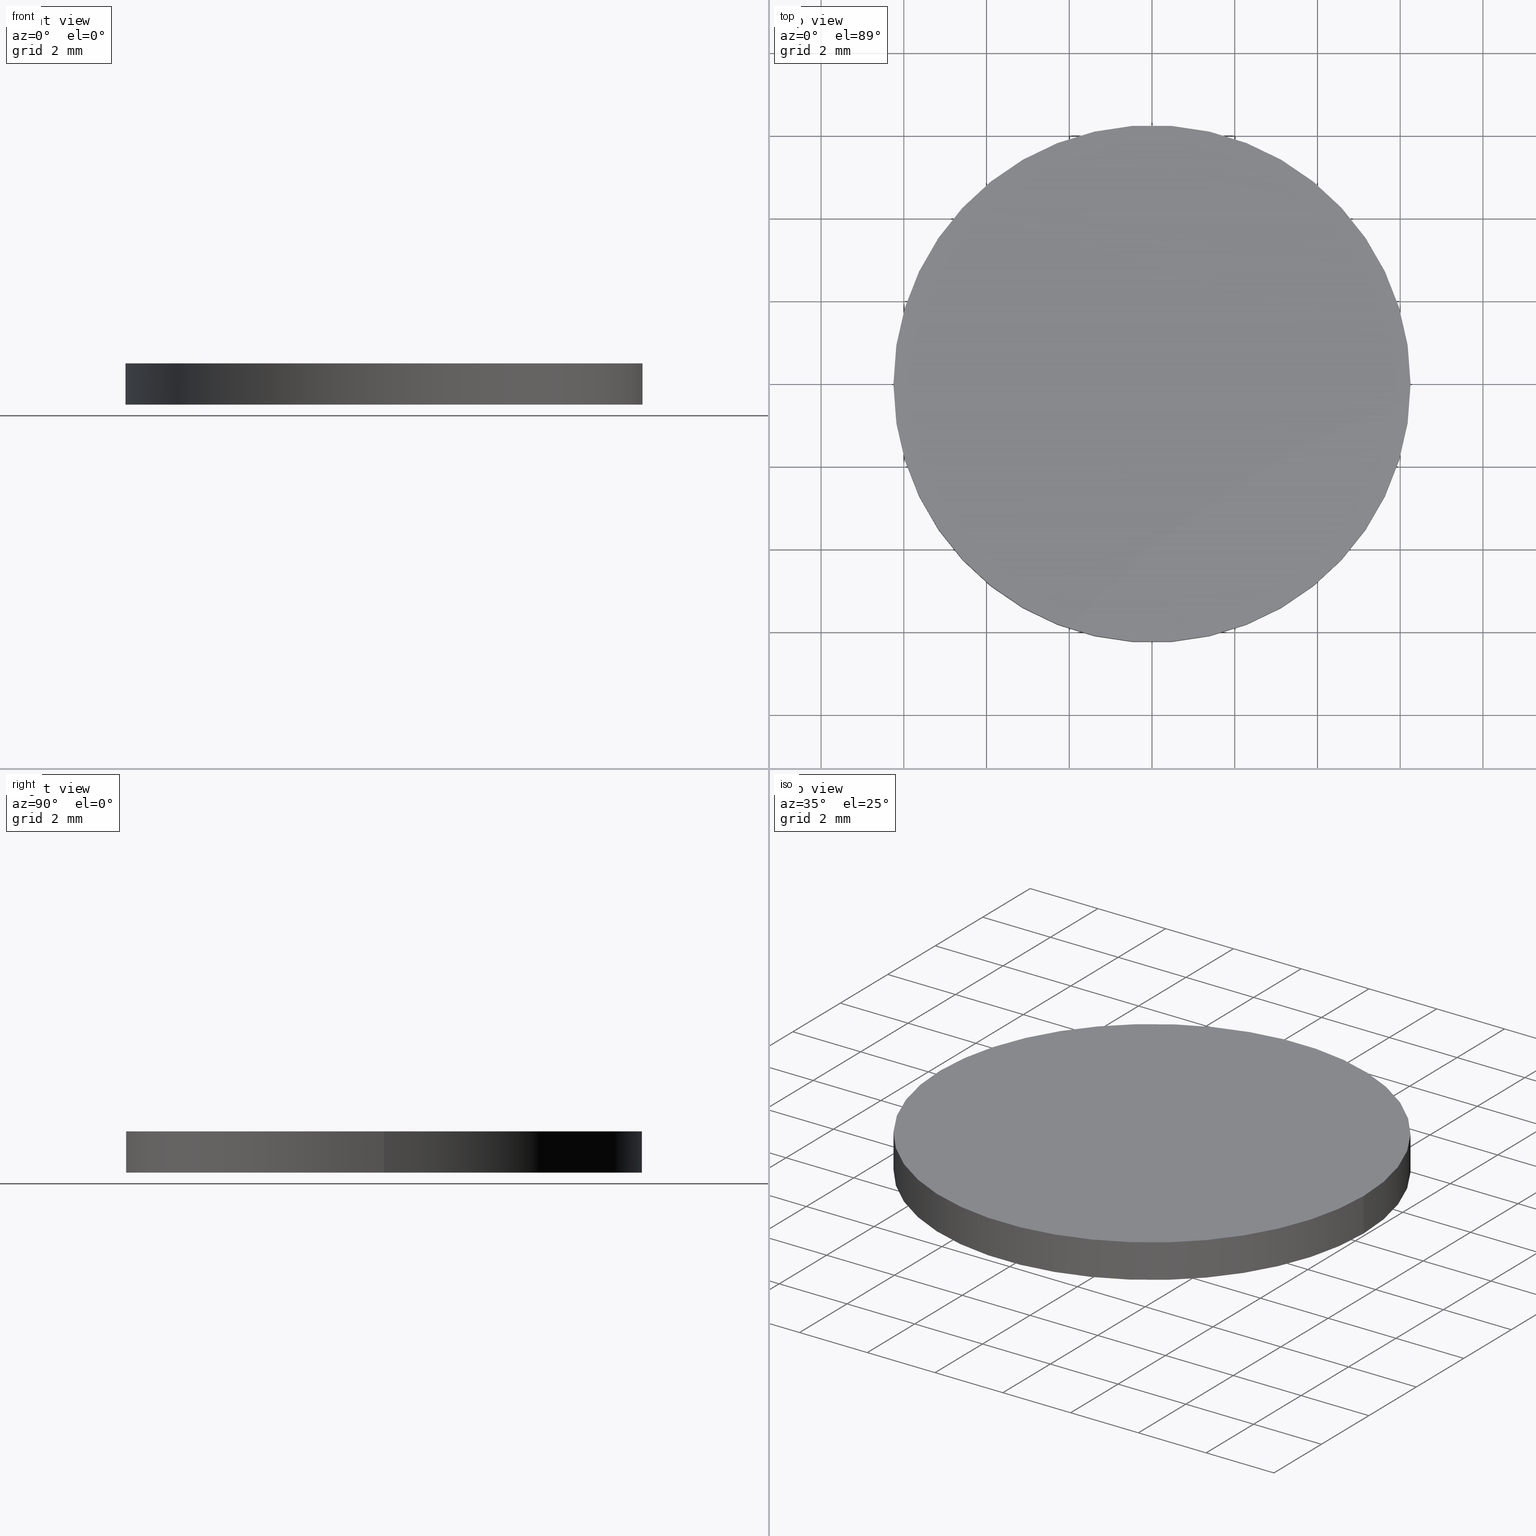
[diagram: canonical four-view strip — front | top / right | iso, engineering-drawing reading convention]
A machine part, canonical four-view strip (front | top / right | iso — engineering-drawing reading convention). The complete STEP part file that produces these views, byte-faithful:
ISO-10303-21;
HEADER;
FILE_DESCRIPTION (( 'STEP AP214' ),
    '1' );
FILE_NAME ('190115.STEP',
    '2019-07-17T02:16:48',
    ( 'user' ),
    ( '΢���й�' ),
    'SwSTEP 2.0',
    'SolidWorks 2016',
    '' );
FILE_SCHEMA (( 'AUTOMOTIVE_DESIGN' ));
ENDSEC;

DATA;
#1 =( LENGTH_UNIT ( ) NAMED_UNIT ( * ) SI_UNIT ( .MILLI., .METRE. ) );
#2 = STYLED_ITEM ( 'NONE', ( #11 ), #118 ) ;
#3 = VERTEX_POINT ( 'NONE', #18 ) ;
#4 = ORIENTED_EDGE ( 'NONE', *, *, #65, .F. ) ;
#5 = PRODUCT_DEFINITION_FORMATION_WITH_SPECIFIED_SOURCE ( '�κ�', '', #52, .NOT_KNOWN. ) ;
#6 =( NAMED_UNIT ( * ) SI_UNIT ( $, .STERADIAN. ) SOLID_ANGLE_UNIT ( ) );
#7 =( NAMED_UNIT ( * ) PLANE_ANGLE_UNIT ( ) SI_UNIT ( $, .RADIAN. ) );
#8 = ORIENTED_EDGE ( 'NONE', *, *, #65, .T. ) ;
#9 =( NAMED_UNIT ( * ) SI_UNIT ( $, .STERADIAN. ) SOLID_ANGLE_UNIT ( ) );
#10 = AXIS2_PLACEMENT_3D ( 'NONE', #111, #77, #122 ) ;
#11 = PRESENTATION_STYLE_ASSIGNMENT (( #91 ) ) ;
#12 = UNCERTAINTY_MEASURE_WITH_UNIT (LENGTH_MEASURE( 1.000000000000000100E-005 ), #112, 'distance_accuracy_value', 'NONE');
#13 = FILL_AREA_STYLE ('',( #47 ) ) ;
#14 = APPLICATION_PROTOCOL_DEFINITION ( 'draft international standard', 'automotive_design', 1998, #36 ) ;
#15 = DIRECTION ( 'NONE',  ( 0.0000000000000000000, 0.0000000000000000000, 1.000000000000000000 ) ) ;
#16 = PRODUCT_RELATED_PRODUCT_CATEGORY ( 'part', '', ( #52 ) ) ;
#17 = PRESENTATION_LAYER_ASSIGNMENT (  '', '', ( #2 ) ) ;
#18 = CARTESIAN_POINT ( 'NONE',  ( -6.250000000000000000, 0.0000000000000000000, 1.000000000000000000 ) ) ;
#19 = CARTESIAN_POINT ( 'NONE',  ( 0.0000000000000000000, 0.0000000000000000000, 1.000000000000000000 ) ) ;
#20 = DIRECTION ( 'NONE',  ( 1.000000000000000000, 0.0000000000000000000, 0.0000000000000000000 ) ) ;
#21 = CYLINDRICAL_SURFACE ( 'NONE', #75, 6.250000000000000000 ) ;
#22 = DIRECTION ( 'NONE',  ( 0.0000000000000000000, 0.0000000000000000000, 1.000000000000000000 ) ) ;
#23 = CARTESIAN_POINT ( 'NONE',  ( 0.0000000000000000000, 0.0000000000000000000, 1.000000000000000000 ) ) ;
#24 = ADVANCED_FACE ( 'NONE', ( #76 ), #21, .T. ) ;
#25 = CARTESIAN_POINT ( 'NONE',  ( 0.0000000000000000000, 0.0000000000000000000, 0.0000000000000000000 ) ) ;
#26 = MECHANICAL_DESIGN_GEOMETRIC_PRESENTATION_REPRESENTATION (  '', ( #2 ), #37 ) ;
#27 = ORIENTED_EDGE ( 'NONE', *, *, #64, .T. ) ;
#28 = EDGE_CURVE ( 'NONE', #98, #3, #107, .T. ) ;
#29 = DIRECTION ( 'NONE',  ( 0.0000000000000000000, 0.0000000000000000000, 1.000000000000000000 ) ) ;
#30 = DIRECTION ( 'NONE',  ( -0.0000000000000000000, -0.0000000000000000000, -1.000000000000000000 ) ) ;
#31 = PRODUCT_DEFINITION_CONTEXT ( 'detailed design', #36, 'design' ) ;
#32 = DIRECTION ( 'NONE',  ( -0.0000000000000000000, -0.0000000000000000000, -1.000000000000000000 ) ) ;
#33 = ADVANCED_BREP_SHAPE_REPRESENTATION ( '190115', ( #118, #132 ), #46 ) ;
#34 = EDGE_CURVE ( 'NONE', #85, #119, #53, .T. ) ;
#35 = EDGE_LOOP ( 'NONE', ( #126, #94, #66, #8 ) ) ;
#36 = APPLICATION_CONTEXT ( 'automotive_design' ) ;
#37 =( GEOMETRIC_REPRESENTATION_CONTEXT ( 3 ) GLOBAL_UNCERTAINTY_ASSIGNED_CONTEXT ( ( #43 ) ) GLOBAL_UNIT_ASSIGNED_CONTEXT ( ( #1, #114, #89 ) ) REPRESENTATION_CONTEXT ( 'NONE', 'WORKASPACE' ) );
#38 = FILL_AREA_STYLE_COLOUR ( '', #117 ) ;
#39 = DIRECTION ( 'NONE',  ( 0.0000000000000000000, 0.0000000000000000000, 1.000000000000000000 ) ) ;
#40 =( LENGTH_UNIT ( ) NAMED_UNIT ( * ) SI_UNIT ( .MILLI., .METRE. ) );
#41 = EDGE_LOOP ( 'NONE', ( #27, #123 ) ) ;
#42 = AXIS2_PLACEMENT_3D ( 'NONE', #104, #39, #68 ) ;
#43 = UNCERTAINTY_MEASURE_WITH_UNIT (LENGTH_MEASURE( 1.000000000000000100E-005 ), #1, 'distance_accuracy_value', 'NONE');
#44 = EDGE_LOOP ( 'NONE', ( #4, #69 ) ) ;
#45 = LINE ( 'NONE', #92, #50 ) ;
#46 =( GEOMETRIC_REPRESENTATION_CONTEXT ( 3 ) GLOBAL_UNCERTAINTY_ASSIGNED_CONTEXT ( ( #12 ) ) GLOBAL_UNIT_ASSIGNED_CONTEXT ( ( #112, #70, #9 ) ) REPRESENTATION_CONTEXT ( 'NONE', 'WORKASPACE' ) );
#47 = FILL_AREA_STYLE_COLOUR ( '', #73 ) ;
#48 = CARTESIAN_POINT ( 'NONE',  ( 0.0000000000000000000, 0.0000000000000000000, 1.000000000000000000 ) ) ;
#49 = AXIS2_PLACEMENT_3D ( 'NONE', #125, #29, #106 ) ;
#50 = VECTOR ( 'NONE', #30, 1000.000000000000000 ) ;
#51 = STYLED_ITEM ( 'NONE', ( #109 ), #33 ) ;
#52 = PRODUCT ( '190115', '190115', '', ( #82 ) ) ;
#53 = CIRCLE ( 'NONE', #49, 6.250000000000000000 ) ;
#54 = EDGE_CURVE ( 'NONE', #98, #85, #84, .T. ) ;
#55 = DIRECTION ( 'NONE',  ( 1.000000000000000000, 0.0000000000000000000, 0.0000000000000000000 ) ) ;
#56 = AXIS2_PLACEMENT_3D ( 'NONE', #25, #22, #55 ) ;
#57 = SURFACE_SIDE_STYLE ('',( #116 ) ) ;
#58 = AXIS2_PLACEMENT_3D ( 'NONE', #129, #110, #121 ) ;
#59 = DIRECTION ( 'NONE',  ( -0.0000000000000000000, -0.0000000000000000000, -1.000000000000000000 ) ) ;
#60 = DIRECTION ( 'NONE',  ( 1.000000000000000000, 0.0000000000000000000, 0.0000000000000000000 ) ) ;
#61 = APPLICATION_PROTOCOL_DEFINITION ( 'draft international standard', 'automotive_design', 1998, #105 ) ;
#62 = ORIENTED_EDGE ( 'NONE', *, *, #95, .F. ) ;
#63 = SHAPE_DEFINITION_REPRESENTATION ( #120, #33 ) ;
#64 = EDGE_CURVE ( 'NONE', #3, #98, #137, .T. ) ;
#65 = EDGE_CURVE ( 'NONE', #119, #85, #102, .T. ) ;
#66 = ORIENTED_EDGE ( 'NONE', *, *, #95, .T. ) ;
#67 = FACE_OUTER_BOUND ( 'NONE', #35, .T. ) ;
#68 = DIRECTION ( 'NONE',  ( 1.000000000000000000, 0.0000000000000000000, 0.0000000000000000000 ) ) ;
#69 = ORIENTED_EDGE ( 'NONE', *, *, #34, .F. ) ;
#70 =( NAMED_UNIT ( * ) PLANE_ANGLE_UNIT ( ) SI_UNIT ( $, .RADIAN. ) );
#71 = AXIS2_PLACEMENT_3D ( 'NONE', #48, #83, #20 ) ;
#72 = EDGE_LOOP ( 'NONE', ( #100, #115, #90, #62 ) ) ;
#73 = COLOUR_RGB ( '',1.000000000000000000, 1.000000000000000000, 1.000000000000000000 ) ;
#74 = PRESENTATION_LAYER_ASSIGNMENT (  '', '', ( #51 ) ) ;
#75 = AXIS2_PLACEMENT_3D ( 'NONE', #19, #32, #103 ) ;
#76 = FACE_OUTER_BOUND ( 'NONE', #72, .T. ) ;
#77 = DIRECTION ( 'NONE',  ( 0.0000000000000000000, 0.0000000000000000000, 1.000000000000000000 ) ) ;
#78 = FACE_OUTER_BOUND ( 'NONE', #44, .T. ) ;
#79 = SURFACE_STYLE_USAGE ( .BOTH. , #57 ) ;
#80 = MECHANICAL_DESIGN_GEOMETRIC_PRESENTATION_REPRESENTATION (  '', ( #51 ), #86 ) ;
#81 = CLOSED_SHELL ( 'NONE', ( #24, #140, #96, #97 ) ) ;
#82 = PRODUCT_CONTEXT ( 'NONE', #105, 'mechanical' ) ;
#83 = DIRECTION ( 'NONE',  ( 0.0000000000000000000, 0.0000000000000000000, 1.000000000000000000 ) ) ;
#84 = LINE ( 'NONE', #139, #131 ) ;
#85 = VERTEX_POINT ( 'NONE', #134 ) ;
#86 =( GEOMETRIC_REPRESENTATION_CONTEXT ( 3 ) GLOBAL_UNCERTAINTY_ASSIGNED_CONTEXT ( ( #135 ) ) GLOBAL_UNIT_ASSIGNED_CONTEXT ( ( #40, #7, #6 ) ) REPRESENTATION_CONTEXT ( 'NONE', 'WORKASPACE' ) );
#87 = CYLINDRICAL_SURFACE ( 'NONE', #58, 6.250000000000000000 ) ;
#88 = CARTESIAN_POINT ( 'NONE',  ( 0.0000000000000000000, 0.0000000000000000000, 0.0000000000000000000 ) ) ;
#89 =( NAMED_UNIT ( * ) SI_UNIT ( $, .STERADIAN. ) SOLID_ANGLE_UNIT ( ) );
#90 = ORIENTED_EDGE ( 'NONE', *, *, #34, .T. ) ;
#91 = SURFACE_STYLE_USAGE ( .BOTH. , #99 ) ;
#92 = CARTESIAN_POINT ( 'NONE',  ( -6.250000000000000000, 0.0000000000000000000, 1.000000000000000000 ) ) ;
#93 = FILL_AREA_STYLE ('',( #38 ) ) ;
#94 = ORIENTED_EDGE ( 'NONE', *, *, #64, .F. ) ;
#95 = EDGE_CURVE ( 'NONE', #3, #119, #45, .T. ) ;
#96 = ADVANCED_FACE ( 'NONE', ( #127 ), #136, .T. ) ;
#97 = ADVANCED_FACE ( 'NONE', ( #78 ), #128, .F. ) ;
#98 = VERTEX_POINT ( 'NONE', #113 ) ;
#99 = SURFACE_SIDE_STYLE ('',( #130 ) ) ;
#100 = ORIENTED_EDGE ( 'NONE', *, *, #28, .F. ) ;
#101 = DIRECTION ( 'NONE',  ( 1.000000000000000000, 0.0000000000000000000, -0.0000000000000000000 ) ) ;
#102 = CIRCLE ( 'NONE', #56, 6.250000000000000000 ) ;
#103 = DIRECTION ( 'NONE',  ( -1.000000000000000000, 0.0000000000000000000, 0.0000000000000000000 ) ) ;
#104 = CARTESIAN_POINT ( 'NONE',  ( 0.0000000000000000000, 0.0000000000000000000, 1.000000000000000000 ) ) ;
#105 = APPLICATION_CONTEXT ( 'automotive_design' ) ;
#106 = DIRECTION ( 'NONE',  ( 1.000000000000000000, 0.0000000000000000000, 0.0000000000000000000 ) ) ;
#107 = CIRCLE ( 'NONE', #42, 6.250000000000000000 ) ;
#108 = DIRECTION ( 'NONE',  ( 0.0000000000000000000, 0.0000000000000000000, 1.000000000000000000 ) ) ;
#109 = PRESENTATION_STYLE_ASSIGNMENT (( #79 ) ) ;
#110 = DIRECTION ( 'NONE',  ( -0.0000000000000000000, -0.0000000000000000000, -1.000000000000000000 ) ) ;
#111 = CARTESIAN_POINT ( 'NONE',  ( 0.0000000000000000000, 0.0000000000000000000, 0.0000000000000000000 ) ) ;
#112 =( LENGTH_UNIT ( ) NAMED_UNIT ( * ) SI_UNIT ( .MILLI., .METRE. ) );
#113 = CARTESIAN_POINT ( 'NONE',  ( 6.250000000000000000, 7.654042494670957600E-016, 1.000000000000000000 ) ) ;
#114 =( NAMED_UNIT ( * ) PLANE_ANGLE_UNIT ( ) SI_UNIT ( $, .RADIAN. ) );
#115 = ORIENTED_EDGE ( 'NONE', *, *, #54, .T. ) ;
#116 = SURFACE_STYLE_FILL_AREA ( #93 ) ;
#117 = COLOUR_RGB ( '',1.000000000000000000, 1.000000000000000000, 1.000000000000000000 ) ;
#118 = MANIFOLD_SOLID_BREP ( '͹̨-����1', #81 ) ;
#119 = VERTEX_POINT ( 'NONE', #124 ) ;
#120 = PRODUCT_DEFINITION_SHAPE ( 'NONE', 'NONE',  #138 ) ;
#121 = DIRECTION ( 'NONE',  ( -1.000000000000000000, 0.0000000000000000000, 0.0000000000000000000 ) ) ;
#122 = DIRECTION ( 'NONE',  ( 1.000000000000000000, 0.0000000000000000000, -0.0000000000000000000 ) ) ;
#123 = ORIENTED_EDGE ( 'NONE', *, *, #28, .T. ) ;
#124 = CARTESIAN_POINT ( 'NONE',  ( -6.250000000000000000, 0.0000000000000000000, 0.0000000000000000000 ) ) ;
#125 = CARTESIAN_POINT ( 'NONE',  ( 0.0000000000000000000, 0.0000000000000000000, 0.0000000000000000000 ) ) ;
#126 = ORIENTED_EDGE ( 'NONE', *, *, #54, .F. ) ;
#127 = FACE_OUTER_BOUND ( 'NONE', #41, .T. ) ;
#128 = PLANE ( 'NONE',  #10 ) ;
#129 = CARTESIAN_POINT ( 'NONE',  ( 0.0000000000000000000, 0.0000000000000000000, 1.000000000000000000 ) ) ;
#130 = SURFACE_STYLE_FILL_AREA ( #13 ) ;
#131 = VECTOR ( 'NONE', #59, 1000.000000000000000 ) ;
#132 = AXIS2_PLACEMENT_3D ( 'NONE', #88, #15, #60 ) ;
#133 = AXIS2_PLACEMENT_3D ( 'NONE', #23, #108, #101 ) ;
#134 = CARTESIAN_POINT ( 'NONE',  ( 6.250000000000000000, 7.654042494670957600E-016, 0.0000000000000000000 ) ) ;
#135 = UNCERTAINTY_MEASURE_WITH_UNIT (LENGTH_MEASURE( 1.000000000000000100E-005 ), #40, 'distance_accuracy_value', 'NONE');
#136 = PLANE ( 'NONE',  #133 ) ;
#137 = CIRCLE ( 'NONE', #71, 6.250000000000000000 ) ;
#138 = PRODUCT_DEFINITION ( 'δ֪', '', #5, #31 ) ;
#139 = CARTESIAN_POINT ( 'NONE',  ( 6.250000000000000000, 7.654042494670957600E-016, 1.000000000000000000 ) ) ;
#140 = ADVANCED_FACE ( 'NONE', ( #67 ), #87, .T. ) ;
ENDSEC;
END-ISO-10303-21;
